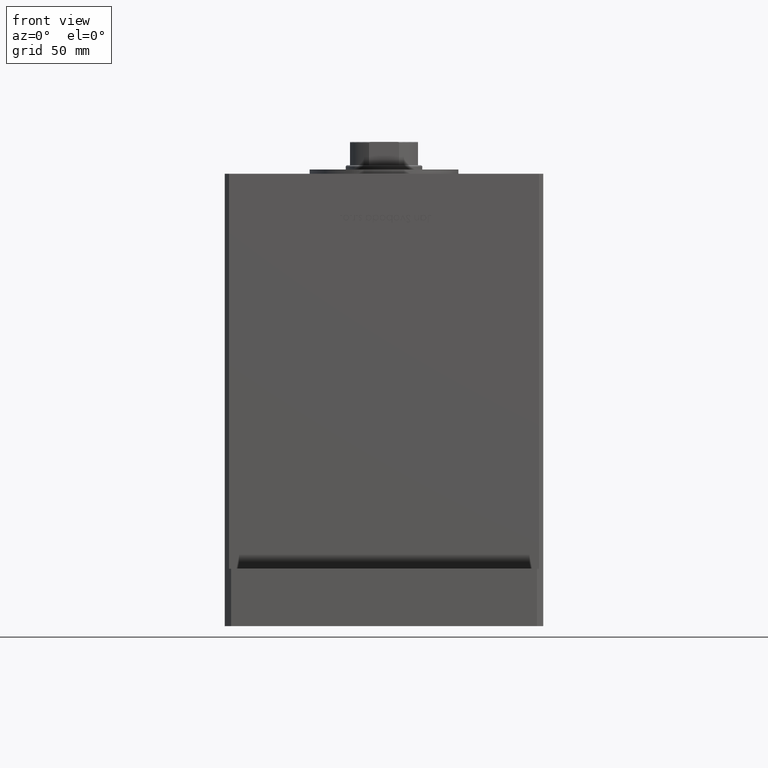
[diagram: clean part render]
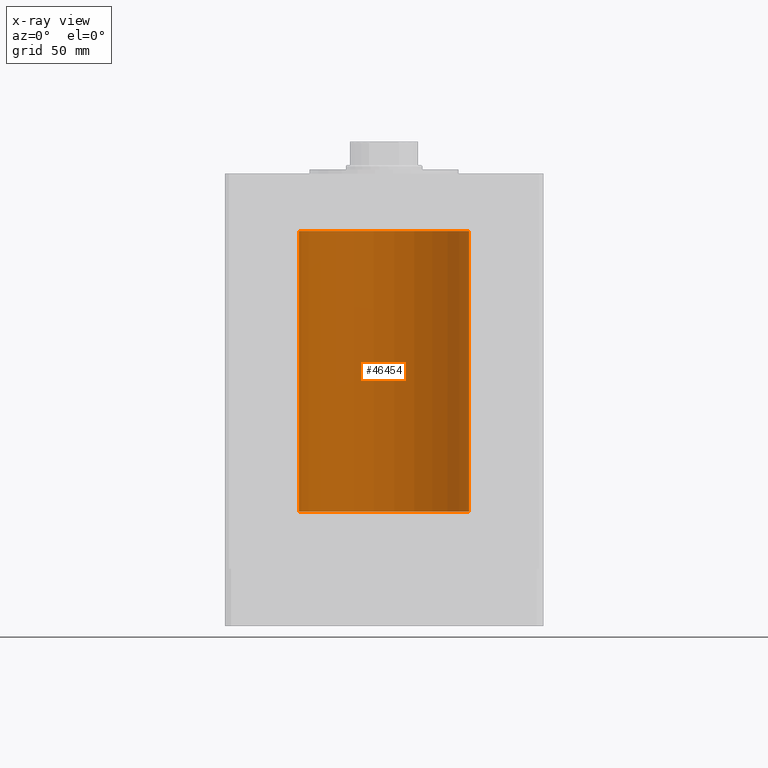
[diagram: x-ray — body ghosted, one internal face saturated and labeled with its STEP entity id]
A machine part, front view, then the same camera in x-ray: the body is ghosted and one INTERNAL B-rep face — a face not visible from any outside direction — is saturated and labeled: STEP entity #46454.
In plain terms, the highlighted cylindrical surface (partial cylindrical patch) has radius 40 mm, axis along (-0, -0, -1).
Its self-contained STEP definition (entity closure, byte-faithful):
#430 = CARTESIAN_POINT ( 'NONE',  ( 0.000000000000000000, 0.000000000000000000, 132.0000000000000000 ) ) ;
#3001 = CIRCLE ( 'NONE', #28170, 40.00000000000000000 ) ;
#5576 = FACE_OUTER_BOUND ( 'NONE', #51082, .T. ) ;
#5617 = DIRECTION ( 'NONE',  ( 1.000000000000000000, 0.000000000000000000, 0.000000000000000000 ) ) ;
#5774 = VERTEX_POINT ( 'NONE', #49774 ) ;
#6111 = CARTESIAN_POINT ( 'NONE',  ( 40.00000000000000000, 4.898587196589413026E-15, 132.0000000000000000 ) ) ;
#6918 = EDGE_CURVE ( 'NONE', #50037, #38166, #3001, .T. ) ;
#7915 = DIRECTION ( 'NONE',  ( -0.000000000000000000, -0.000000000000000000, -1.000000000000000000 ) ) ;
#8130 = AXIS2_PLACEMENT_3D ( 'NONE', #26002, #32609, #5617 ) ;
#8425 = EDGE_CURVE ( 'NONE', #5774, #27077, #16809, .T. ) ;
#8669 = ORIENTED_EDGE ( 'NONE', *, *, #33005, .T. ) ;
#11116 = CARTESIAN_POINT ( 'NONE',  ( 0.000000000000000000, 0.000000000000000000, 0.000000000000000000 ) ) ;
#12516 = LINE ( 'NONE', #45112, #31037 ) ;
#12920 = DIRECTION ( 'NONE',  ( -1.000000000000000000, 0.000000000000000000, 0.000000000000000000 ) ) ;
#16809 = CIRCLE ( 'NONE', #8130, 40.00000000000000000 ) ;
#20840 = CARTESIAN_POINT ( 'NONE',  ( -40.00000000000000000, 0.000000000000000000, 0.000000000000000000 ) ) ;
#21079 = DIRECTION ( 'NONE',  ( -0.000000000000000000, -0.000000000000000000, -1.000000000000000000 ) ) ;
#21670 = ORIENTED_EDGE ( 'NONE', *, *, #6918, .F. ) ;
#22319 = ORIENTED_EDGE ( 'NONE', *, *, #8425, .T. ) ;
#23028 = EDGE_CURVE ( 'NONE', #5774, #50037, #44977, .T. ) ;
#26002 = CARTESIAN_POINT ( 'NONE',  ( 0.000000000000000000, 0.000000000000000000, 132.0000000000000000 ) ) ;
#27077 = VERTEX_POINT ( 'NONE', #42401 ) ;
#27690 = DIRECTION ( 'NONE',  ( -0.000000000000000000, 0.000000000000000000, 1.000000000000000000 ) ) ;
#28170 = AXIS2_PLACEMENT_3D ( 'NONE', #11116, #27690, #38452 ) ;
#31037 = VECTOR ( 'NONE', #7915, 1000.000000000000000 ) ;
#32609 = DIRECTION ( 'NONE',  ( -0.000000000000000000, 0.000000000000000000, 1.000000000000000000 ) ) ;
#33005 = EDGE_CURVE ( 'NONE', #27077, #38166, #12516, .T. ) ;
#36492 = AXIS2_PLACEMENT_3D ( 'NONE', #430, #21079, #12920 ) ;
#37669 = ORIENTED_EDGE ( 'NONE', *, *, #23028, .F. ) ;
#38166 = VERTEX_POINT ( 'NONE', #20840 ) ;
#38452 = DIRECTION ( 'NONE',  ( 1.000000000000000000, 0.000000000000000000, 0.000000000000000000 ) ) ;
#42401 = CARTESIAN_POINT ( 'NONE',  ( -40.00000000000000000, 0.000000000000000000, 132.0000000000000000 ) ) ;
#42773 = DIRECTION ( 'NONE',  ( -0.000000000000000000, -0.000000000000000000, -1.000000000000000000 ) ) ;
#44977 = LINE ( 'NONE', #6111, #45578 ) ;
#45112 = CARTESIAN_POINT ( 'NONE',  ( -40.00000000000000000, 0.000000000000000000, 132.0000000000000000 ) ) ;
#45578 = VECTOR ( 'NONE', #42773, 1000.000000000000000 ) ;
#46192 = CARTESIAN_POINT ( 'NONE',  ( 40.00000000000000000, 4.898587196589413026E-15, 0.000000000000000000 ) ) ;
#46454 = ADVANCED_FACE ( 'NONE', ( #5576 ), #46577, .F. ) ;
#46577 = CYLINDRICAL_SURFACE ( 'NONE', #36492, 40.00000000000000000 ) ;
#49774 = CARTESIAN_POINT ( 'NONE',  ( 40.00000000000000000, 4.898587196589413026E-15, 132.0000000000000000 ) ) ;
#50037 = VERTEX_POINT ( 'NONE', #46192 ) ;
#51082 = EDGE_LOOP ( 'NONE', ( #37669, #22319, #8669, #21670 ) ) ;